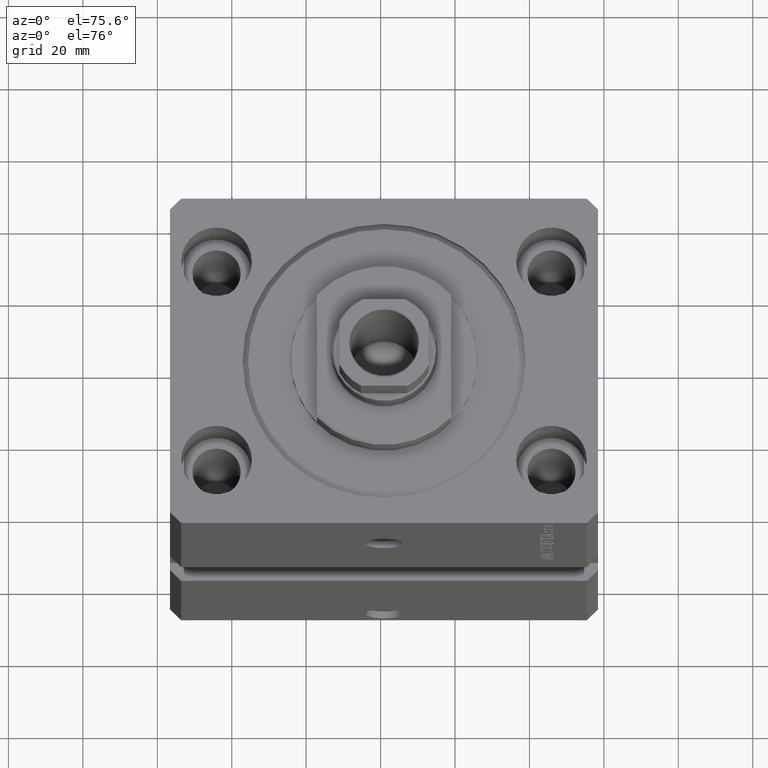
[diagram: clean part render]
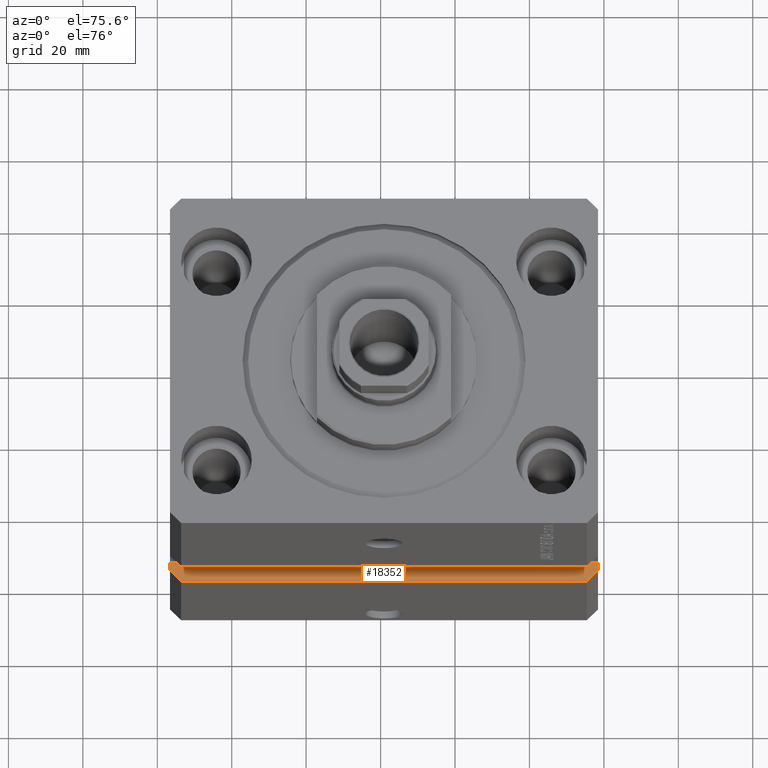
[diagram: same view with one face highlighted and labeled with its STEP entity id]
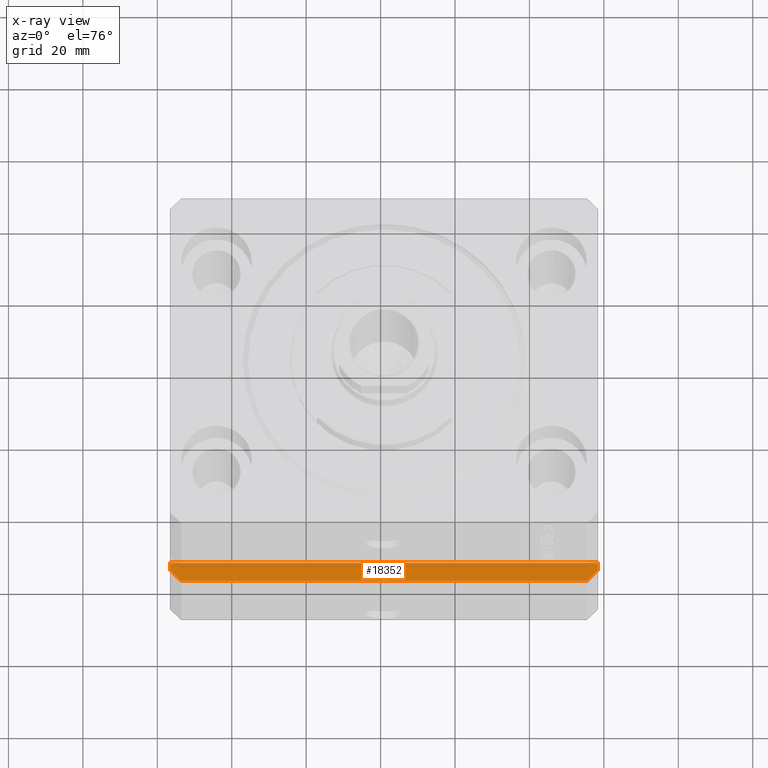
[diagram: x-ray of the same camera — body ghosted, the highlighted face saturated]
A machine part, auxiliary view. The second image highlights one B-rep face of the part: STEP entity #18352.
The next image is the same camera in x-ray: the body ghosted, the highlighted face saturated — about 0% of this face is hidden behind the body in this view.
In plain terms, the highlighted planar face has unit normal (0, 0, -1).
Its self-contained STEP definition (entity closure, byte-faithful):
#1051 = ORIENTED_EDGE ( 'NONE', *, *, #26324, .T. ) ;
#1222 = VECTOR ( 'NONE', #19214, 1000.000000000000114 ) ;
#2360 = VERTEX_POINT ( 'NONE', #42199 ) ;
#3581 = CARTESIAN_POINT ( 'NONE',  ( 57.50000000000000711, -39.99999999999998579, -62.50000000000000000 ) ) ;
#4795 = EDGE_LOOP ( 'NONE', ( #17115, #30462, #33492, #25903, #37584, #1051 ) ) ;
#6093 = VECTOR ( 'NONE', #26607, 1000.000000000000000 ) ;
#7188 = VECTOR ( 'NONE', #24558, 1000.000000000000000 ) ;
#7587 = DIRECTION ( 'NONE',  ( -1.000000000000000000, 0.000000000000000000, -0.000000000000000000 ) ) ;
#8070 = CARTESIAN_POINT ( 'NONE',  ( 54.50000000000000711, -44.99999999999998579, -62.50000000000000000 ) ) ;
#8335 = VERTEX_POINT ( 'NONE', #39482 ) ;
#9669 = EDGE_CURVE ( 'NONE', #34540, #47172, #19760, .T. ) ;
#10035 = EDGE_CURVE ( 'NONE', #30676, #30663, #29872, .T. ) ;
#12047 = DIRECTION ( 'NONE',  ( 0.7071067811865483499, 0.7071067811865465735, 0.000000000000000000 ) ) ;
#12739 = EDGE_CURVE ( 'NONE', #8335, #47172, #33693, .T. ) ;
#14517 = DIRECTION ( 'NONE',  ( 1.176083712526788232E-16, -1.000000000000000000, -0.000000000000000000 ) ) ;
#17115 = ORIENTED_EDGE ( 'NONE', *, *, #9669, .T. ) ;
#18202 = VECTOR ( 'NONE', #35337, 1000.000000000000000 ) ;
#18352 = ADVANCED_FACE ( 'NONE', ( #34457 ), #45891, .F. ) ;
#19214 = DIRECTION ( 'NONE',  ( 0.7071067811865491270, -0.7071067811865459074, 0.000000000000000000 ) ) ;
#19760 = LINE ( 'NONE', #8070, #24349 ) ;
#23689 = EDGE_CURVE ( 'NONE', #30676, #8335, #31106, .T. ) ;
#24349 = VECTOR ( 'NONE', #12047, 1000.000000000000114 ) ;
#24558 = DIRECTION ( 'NONE',  ( 1.000000000000000000, 1.206764157201257045E-16, 0.000000000000000000 ) ) ;
#25903 = ORIENTED_EDGE ( 'NONE', *, *, #10035, .T. ) ;
#26324 = EDGE_CURVE ( 'NONE', #2360, #34540, #35288, .T. ) ;
#26607 = DIRECTION ( 'NONE',  ( 1.176083712526788232E-16, -1.000000000000000000, -0.000000000000000000 ) ) ;
#28799 = AXIS2_PLACEMENT_3D ( 'NONE', #41678, #33479, #7587 ) ;
#29872 = LINE ( 'NONE', #44793, #6093 ) ;
#30462 = ORIENTED_EDGE ( 'NONE', *, *, #12739, .F. ) ;
#30663 = VERTEX_POINT ( 'NONE', #36281 ) ;
#30676 = VERTEX_POINT ( 'NONE', #40500 ) ;
#31106 = LINE ( 'NONE', #45780, #18202 ) ;
#33479 = DIRECTION ( 'NONE',  ( 0.000000000000000000, 0.000000000000000000, -1.000000000000000000 ) ) ;
#33492 = ORIENTED_EDGE ( 'NONE', *, *, #23689, .F. ) ;
#33693 = LINE ( 'NONE', #3581, #41942 ) ;
#34457 = FACE_OUTER_BOUND ( 'NONE', #4795, .T. ) ;
#34540 = VERTEX_POINT ( 'NONE', #44705 ) ;
#34650 = CARTESIAN_POINT ( 'NONE',  ( -57.50000000000000711, -42.00000000000000711, -62.50000000000000000 ) ) ;
#35288 = LINE ( 'NONE', #46720, #7188 ) ;
#35337 = DIRECTION ( 'NONE',  ( 1.000000000000000000, 1.206764157201257045E-16, 0.000000000000000000 ) ) ;
#36281 = CARTESIAN_POINT ( 'NONE',  ( -57.50000000000000711, -42.00000000000000711, -62.50000000000000000 ) ) ;
#37584 = ORIENTED_EDGE ( 'NONE', *, *, #41439, .T. ) ;
#39482 = CARTESIAN_POINT ( 'NONE',  ( 57.50000000000000711, -39.99999999999998579, -62.50000000000000000 ) ) ;
#40500 = CARTESIAN_POINT ( 'NONE',  ( -57.50000000000000711, -40.00000000000000000, -62.50000000000000000 ) ) ;
#41439 = EDGE_CURVE ( 'NONE', #30663, #2360, #46574, .T. ) ;
#41678 = CARTESIAN_POINT ( 'NONE',  ( -57.50000000000000711, -40.00000000000000000, -62.50000000000000000 ) ) ;
#41942 = VECTOR ( 'NONE', #14517, 1000.000000000000000 ) ;
#42199 = CARTESIAN_POINT ( 'NONE',  ( -54.50000000000000711, -45.00000000000000000, -62.50000000000000000 ) ) ;
#42563 = CARTESIAN_POINT ( 'NONE',  ( 57.50000000000000711, -41.99999999999998579, -62.50000000000000000 ) ) ;
#44705 = CARTESIAN_POINT ( 'NONE',  ( 54.49999999999997868, -44.99999999999998579, -62.50000000000000000 ) ) ;
#44793 = CARTESIAN_POINT ( 'NONE',  ( -57.50000000000000711, -40.00000000000000000, -62.50000000000000000 ) ) ;
#45780 = CARTESIAN_POINT ( 'NONE',  ( -57.50000000000000711, -40.00000000000000000, -62.50000000000000000 ) ) ;
#45891 = PLANE ( 'NONE',  #28799 ) ;
#46574 = LINE ( 'NONE', #34650, #1222 ) ;
#46720 = CARTESIAN_POINT ( 'NONE',  ( -57.50000000000000711, -45.00000000000000000, -62.50000000000000000 ) ) ;
#47172 = VERTEX_POINT ( 'NONE', #42563 ) ;